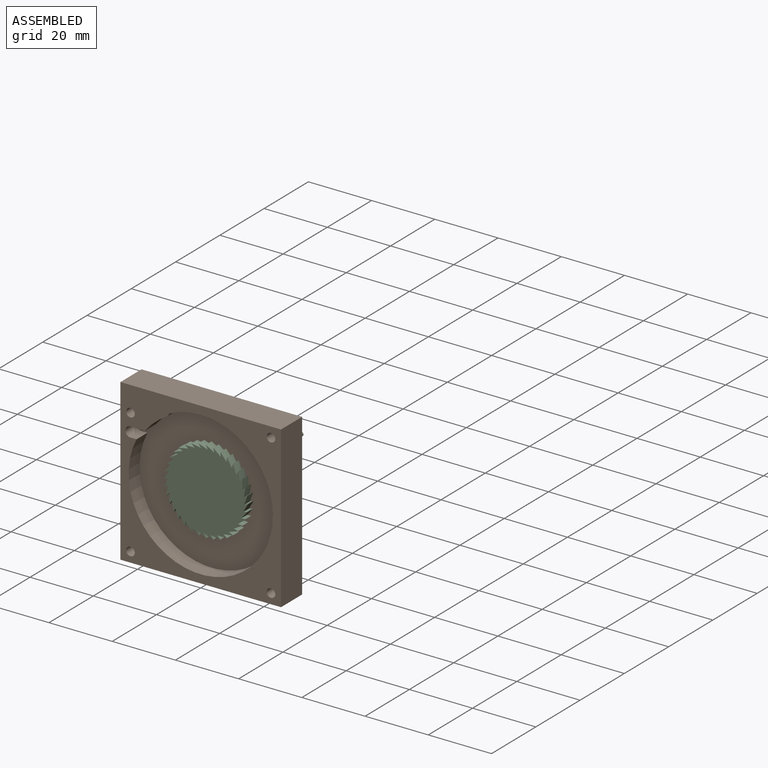
[diagram: assembled view]
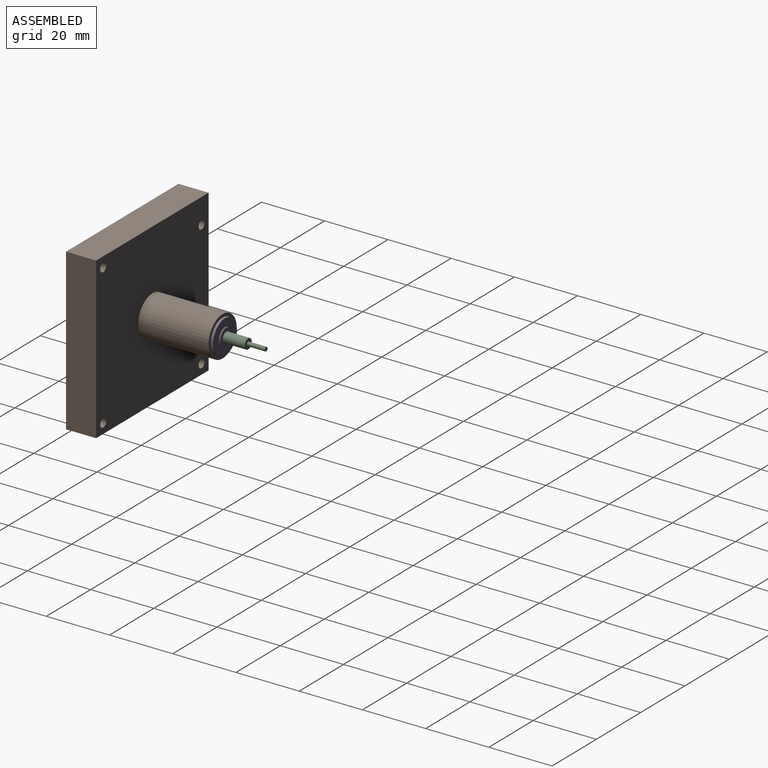
[diagram: assembled view, second angle]
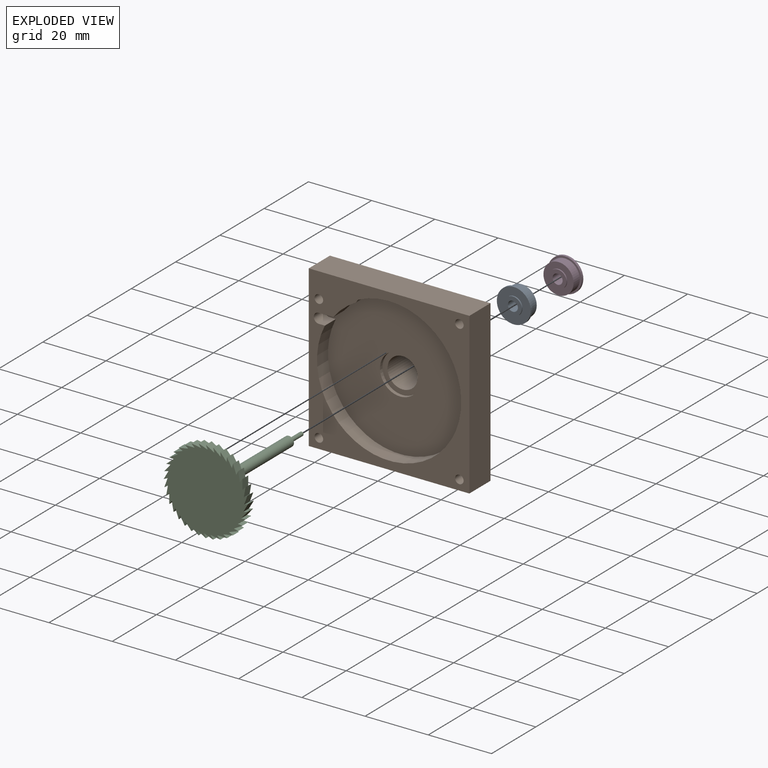
[diagram: exploded view]
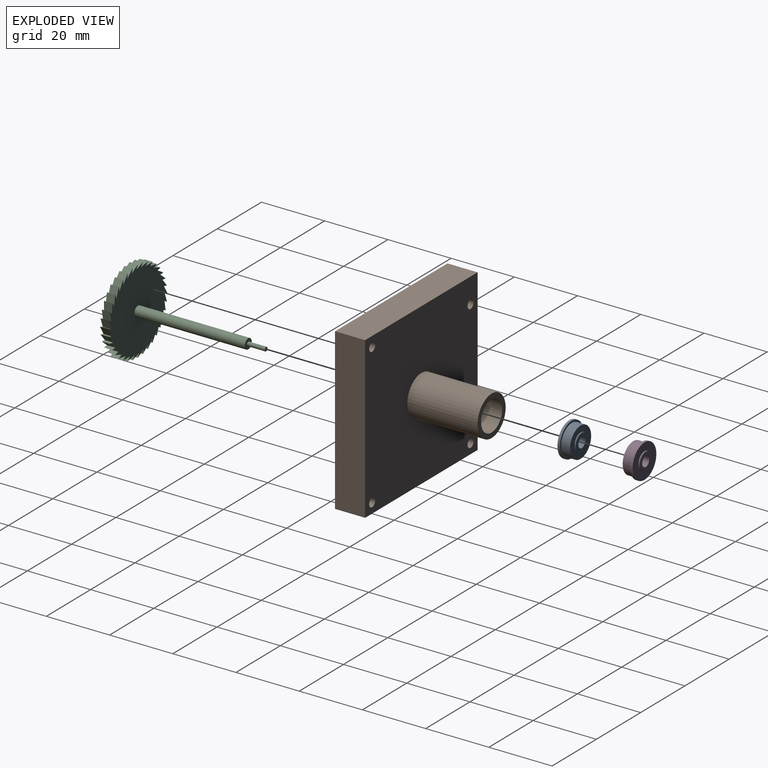
[diagram: exploded view, second angle]
ASSEMBLY  parts=4 mates=5
PART A: 10 faces, bbox 4.4x10.7x10.7 mm
  f0: cylinder r=1.59mm len=4.37mm, axis (1,0,0), area 43.6mm2, adj f1,f9
  f1: plane 5.59x5.59mm, normal (1,0,0), area 16.6mm2, adj f0,f2
  f2: cylinder r=2.79mm len=5.59mm, axis (1,0,0), area 7mm2, adj f1,f3
  f3: plane 10.72x10.72mm, normal (1,0,0), area 65.7mm2, adj f2,f4
  f4: cylinder r=5.36mm len=10.72mm, axis (1,0,0), area 25.7mm2, adj f3,f5
  f5: plane 10.72x10.72mm, normal (-1,0,0), area 19mm2, adj f4,f6
  f6: cylinder r=4.76mm len=9.53mm, axis (1,0,0), area 84.1mm2, adj f5,f7
  f7: plane 9.53x9.53mm, normal (-1,0,0), area 46.7mm2, adj f6,f8
  f8: cylinder r=2.79mm len=5.59mm, axis (1,0,0), area 7mm2, adj f7,f9
  f9: plane 5.59x5.59mm, normal (-1,0,0), area 16.6mm2, adj f0,f8
PART B: 25 faces, bbox 50.8x31.8x50.8 mm
  f0: cylinder r=4.76mm len=25.65mm, axis (0,-1,0), area 767.7mm2, adj f6,f23
  f1: plane 50.8x50.8mm, normal (0,-1,0), area 916mm2, adj f2,f3,f4,f5,f8,f11,f12,f13
  f2: plane 50.8x9.53mm, normal (0,0,1), area 483.9mm2, adj f1,f3,f5,f9
  f3: plane 50.8x9.53mm, normal (-1,0,0), area 478.1mm2, adj f1,f2,f4,f9,f15
  f4: plane 50.8x9.53mm, normal (0,0,-1), area 483.9mm2, adj f1,f3,f5,f9
  f5: plane 50.8x9.53mm, normal (1,0,0), area 483.9mm2, adj f1,f2,f4,f9
  f6: plane 12.7x12.7mm, normal (0,1,0), area 55.4mm2, adj f0,f10
  f7: plane 46.62x45.62mm, normal (0,-1,0), area 1515mm2, adj f8,f18,f19,f20,f21,f22,f24
  f8: cylinder r=22.25mm len=7.29mm, axis (0,-1,0), area 47.6mm2, adj f1,f7,f18,f22
  f9: plane 50.8x50.8mm, normal (0,1,0), area 2431mm2, adj f2,f3,f4,f5,f10,f11,f12,f13
  f10: cylinder r=6.35mm len=22.23mm, axis (0,1,0), area 886.7mm2, adj f6,f9
  f11: cylinder r=1.35mm len=9.53mm, axis (0,-1,0), area 80.9mm2, adj f1,f9
  f12: cylinder r=1.35mm len=9.53mm, axis (0,-1,0), area 80.9mm2, adj f1,f9
  f13: cylinder r=1.35mm len=9.53mm, axis (0,-1,0), area 80.9mm2, adj f1,f9
  f14: cylinder r=1.35mm len=9.53mm, axis (0,-1,0), area 80.9mm2, adj f1,f9
  f15: cylinder r=1.35mm len=9.53mm, axis (-1,0,0), area 80.9mm2, adj f3,f17
  f16: cylinder r=0.36mm len=9.53mm, axis (-1,0,0), area 18.5mm2, adj f17,f21
  f17: cone r=0.36mm half-angle=45deg, axis (-1,0,0), area 7.6mm2, adj f15,f16
  f18: plane 4.95x4.58mm, normal (0,0,-1), area 22.7mm2, adj f1,f7,f8,f19
  f19: cylinder r=1.59mm len=4.95mm, axis (0,-1,0), area 24.7mm2, adj f1,f7,f18,f20
  f20: plane 4.95x1.91mm, normal (0,0,1), area 9.5mm2, adj f1,f7,f19,f21
  f21: cylinder r=22.81mm len=45.62mm, axis (0,-1,0), area 632.7mm2, adj f1,f7,f16,f20,f22
  f22: cylinder r=1.59mm len=4.95mm, axis (0,-1,0), area 7mm2, adj f1,f7,f8,f21
  f23: plane 12.7x12.7mm, normal (0,-1,0), area 55.4mm2, adj f0,f24
  f24: cylinder r=6.35mm len=12.7mm, axis (0,-1,0), area 45.6mm2, adj f7,f23
PART C: 78 faces, bbox 26.7x43.2x26.7 mm
  f0: plane 2.62x1.34mm, normal (-0.97,0,0.26), area 3.6mm2, adj f1,f71,f72,f73
  f1: plane 2.62x2.37mm, normal (0.64,0,-0.77), area 8.1mm2, adj f0,f2,f72,f73
  f2: plane 2.62x1.39mm, normal (-1,0,0.09), area 3.6mm2, adj f1,f3,f72,f73
  f3: plane 2.62x2.37mm, normal (0.77,0,-0.64), area 8.1mm2, adj f2,f4,f72,f73
  f4: plane 2.62x1.39mm, normal (-1,0,-0.09), area 3.6mm2, adj f3,f5,f72,f73
  f5: plane 2.68x2.62mm, normal (0.87,0,-0.5), area 8.1mm2, adj f4,f6,f72,f73
  f6: plane 2.62x1.34mm, normal (-0.97,0,-0.26), area 3.6mm2, adj f5,f7,f72,f73
  f7: plane 2.91x2.62mm, normal (0.94,0,-0.34), area 8.1mm2, adj f6,f8,f72,f73
  f8: plane 2.62x1.26mm, normal (-0.91,0,-0.42), area 3.6mm2, adj f7,f9,f72,f73
  f9: plane 3.05x2.62mm, normal (0.98,0,-0.17), area 8.1mm2, adj f8,f10,f72,f73
  f10: plane 2.62x1.14mm, normal (-0.82,0,-0.57), area 3.6mm2, adj f9,f11,f72,f73
  f11: plane 3.1x2.62mm, normal (1,0,0), area 8.1mm2, adj f10,f12,f72,f73
  f12: plane 2.62x0.98mm, normal (-0.71,0,-0.71), area 3.6mm2, adj f11,f13,f72,f73
  f13: plane 3.05x2.62mm, normal (0.98,0,0.17), area 8.1mm2, adj f12,f14,f72,f73
  f14: plane 2.62x1.14mm, normal (-0.57,0,-0.82), area 3.6mm2, adj f13,f15,f72,f73
  f15: plane 2.91x2.62mm, normal (0.94,0,0.34), area 8.1mm2, adj f14,f16,f72,f73
  f16: plane 2.62x1.26mm, normal (-0.42,0,-0.91), area 3.6mm2, adj f15,f17,f72,f73
  f17: plane 2.68x2.62mm, normal (0.87,0,0.5), area 8.1mm2, adj f16,f18,f72,f73
  f18: plane 2.62x1.34mm, normal (-0.26,0,-0.97), area 3.6mm2, adj f17,f19,f72,f73
  f19: plane 2.62x2.37mm, normal (0.77,0,0.64), area 8.1mm2, adj f18,f20,f72,f73
  f20: plane 2.62x1.39mm, normal (-0.09,0,-1), area 3.6mm2, adj f19,f21,f72,f73
  f21: plane 2.62x2.37mm, normal (0.64,0,0.77), area 8.1mm2, adj f20,f22,f72,f73
  f22: plane 2.62x1.39mm, normal (0.09,0,-1), area 3.6mm2, adj f21,f23,f72,f73
  f23: plane 2.68x2.62mm, normal (0.5,0,0.87), area 8.1mm2, adj f22,f24,f72,f73
  f24: plane 2.62x1.34mm, normal (0.26,0,-0.97), area 3.6mm2, adj f23,f25,f72,f73
  f25: plane 2.91x2.62mm, normal (0.34,0,0.94), area 8.1mm2, adj f24,f26,f72,f73
  f26: plane 2.62x1.26mm, normal (0.42,0,-0.91), area 3.6mm2, adj f25,f27,f72,f73
  f27: plane 3.05x2.62mm, normal (0.17,0,0.98), area 8.1mm2, adj f26,f28,f72,f73
  f28: plane 2.62x1.14mm, normal (0.57,0,-0.82), area 3.6mm2, adj f27,f29,f72,f73
  f29: plane 3.1x2.62mm, normal (0,0,1), area 8.1mm2, adj f28,f30,f72,f73
  f30: plane 2.62x0.98mm, normal (0.71,0,-0.71), area 3.6mm2, adj f29,f31,f72,f73
  f31: plane 3.05x2.62mm, normal (-0.17,0,0.98), area 8.1mm2, adj f30,f32,f72,f73
  f32: plane 2.62x1.14mm, normal (0.82,0,-0.57), area 3.6mm2, adj f31,f33,f72,f73
  f33: plane 2.91x2.62mm, normal (-0.34,0,0.94), area 8.1mm2, adj f32,f34,f72,f73
  f34: plane 2.62x1.26mm, normal (0.91,0,-0.42), area 3.6mm2, adj f33,f35,f72,f73
  f35: plane 2.68x2.62mm, normal (-0.5,0,0.87), area 8.1mm2, adj f34,f36,f72,f73
  f36: plane 2.62x1.34mm, normal (0.97,0,-0.26), area 3.6mm2, adj f35,f37,f72,f73
  f37: plane 2.62x2.37mm, normal (-0.64,0,0.77), area 8.1mm2, adj f36,f38,f72,f73
  f38: plane 2.62x1.39mm, normal (1,0,-0.09), area 3.6mm2, adj f37,f39,f72,f73
  f39: plane 2.62x2.37mm, normal (-0.77,0,0.64), area 8.1mm2, adj f38,f40,f72,f73
  f40: plane 2.62x1.39mm, normal (1,0,0.09), area 3.6mm2, adj f39,f41,f72,f73
  f41: plane 2.68x2.62mm, normal (-0.87,0,0.5), area 8.1mm2, adj f40,f42,f72,f73
  f42: plane 2.62x1.34mm, normal (0.97,0,0.26), area 3.6mm2, adj f41,f43,f72,f73
  f43: plane 2.91x2.62mm, normal (-0.94,0,0.34), area 8.1mm2, adj f42,f44,f72,f73
  f44: plane 2.62x1.26mm, normal (0.91,0,0.42), area 3.6mm2, adj f43,f45,f72,f73
  f45: plane 3.05x2.62mm, normal (-0.98,0,0.17), area 8.1mm2, adj f44,f46,f72,f73
  f46: plane 2.62x1.14mm, normal (0.82,0,0.57), area 3.6mm2, adj f45,f47,f72,f73
  f47: plane 3.1x2.62mm, normal (-1,0,0), area 8.1mm2, adj f46,f48,f72,f73
  f48: plane 2.62x0.98mm, normal (0.71,0,0.71), area 3.6mm2, adj f47,f49,f72,f73
  f49: plane 3.05x2.62mm, normal (-0.98,0,-0.17), area 8.1mm2, adj f48,f50,f72,f73
  f50: plane 2.62x1.14mm, normal (0.57,0,0.82), area 3.6mm2, adj f49,f51,f72,f73
  f51: plane 2.91x2.62mm, normal (-0.94,0,-0.34), area 8.1mm2, adj f50,f52,f72,f73
  f52: plane 2.62x1.26mm, normal (0.42,0,0.91), area 3.6mm2, adj f51,f53,f72,f73
  f53: plane 2.68x2.62mm, normal (-0.87,0,-0.5), area 8.1mm2, adj f52,f54,f72,f73
  f54: plane 2.62x1.34mm, normal (0.26,0,0.97), area 3.6mm2, adj f53,f55,f72,f73
  f55: plane 2.62x2.37mm, normal (-0.77,0,-0.64), area 8.1mm2, adj f54,f56,f72,f73
  f56: plane 2.62x1.39mm, normal (0.09,0,1), area 3.6mm2, adj f55,f57,f72,f73
  f57: plane 2.62x2.37mm, normal (-0.64,0,-0.77), area 8.1mm2, adj f56,f58,f72,f73
  f58: plane 2.62x1.39mm, normal (-0.09,0,1), area 3.6mm2, adj f57,f59,f72,f73
  f59: plane 2.68x2.62mm, normal (-0.5,0,-0.87), area 8.1mm2, adj f58,f60,f72,f73
  f60: plane 2.62x1.34mm, normal (-0.26,0,0.97), area 3.6mm2, adj f59,f61,f72,f73
  f61: plane 2.91x2.62mm, normal (-0.34,0,-0.94), area 8.1mm2, adj f60,f62,f72,f73
  f62: plane 2.62x1.26mm, normal (-0.42,0,0.91), area 3.6mm2, adj f61,f63,f72,f73
  f63: plane 3.05x2.62mm, normal (-0.17,0,-0.98), area 8.1mm2, adj f62,f64,f72,f73
  f64: plane 2.62x1.14mm, normal (-0.57,0,0.82), area 3.6mm2, adj f63,f65,f72,f73
  f65: plane 3.1x2.62mm, normal (0,0,-1), area 8.1mm2, adj f64,f66,f72,f73
  f66: plane 2.62x0.98mm, normal (-0.71,0,0.71), area 3.6mm2, adj f65,f67,f72,f73
  f67: plane 3.05x2.62mm, normal (0.17,0,-0.98), area 8.1mm2, adj f66,f68,f72,f73
  f68: plane 2.62x1.14mm, normal (-0.82,0,0.57), area 3.6mm2, adj f67,f69,f72,f73
  f69: plane 2.91x2.62mm, normal (0.34,0,-0.94), area 8.1mm2, adj f68,f70,f72,f73
  f70: plane 2.62x1.26mm, normal (-0.91,0,0.42), area 3.6mm2, adj f69,f71,f72,f73
  f71: plane 2.68x2.62mm, normal (0.5,0,-0.87), area 8.1mm2, adj f0,f70,f72,f73
  f72: plane 26.72x26.72mm, normal (0,-1,0), area 495.2mm2, adj f0,f1,f2,f3,f4,f5,f6,f7
  f73: plane 26.72x26.72mm, normal (0,1,0), area 503.1mm2, adj f0,f1,f2,f3,f4,f5,f6,f7
  f74: cylinder r=1.59mm len=34.93mm, axis (0,1,0), area 348.4mm2, adj f72,f75
  f75: plane 3.18x3.18mm, normal (0,-1,0), area 6.7mm2, adj f74,f76
  f76: cylinder r=0.64mm len=5.66mm, axis (0,1,0), area 22.6mm2, adj f75,f77
  f77: plane 1.27x1.27mm, normal (0,-1,0), area 1.3mm2, adj f76
PART D: same geometry as A
PLACE A rot(axis=(0,0,-1),90deg) t=(0,9.3,0)mm
PLACE B rot(axis=(-0.24,0.55,0.8),0deg) t=(0,0,0)mm
PLACE C rot(axis=(-0.71,0,0.71),180deg) t=(0,2.32,0)mm
PLACE D rot(axis=(-0.71,-0.71,0),180deg) t=(0,28.54,0)mm
MATE fastened B.f0 <-> D.f0  axis (0,1,0) through (0,31.75,0)mm
MATE ball B.f0 <-> D.f0  axis (0,1,0) through (0,31.75,0)mm
MATE ball B.f0 <-> A.f0  axis (0,-1,0) through (0,6.1,0)mm
MATE fastened B.f0 <-> A.f0  axis (0,-1,0) through (0,6.1,0)mm
MATE fastened C.f74 <-> A.f0  axis (0,1,0) through (0,4.94,0)mm
